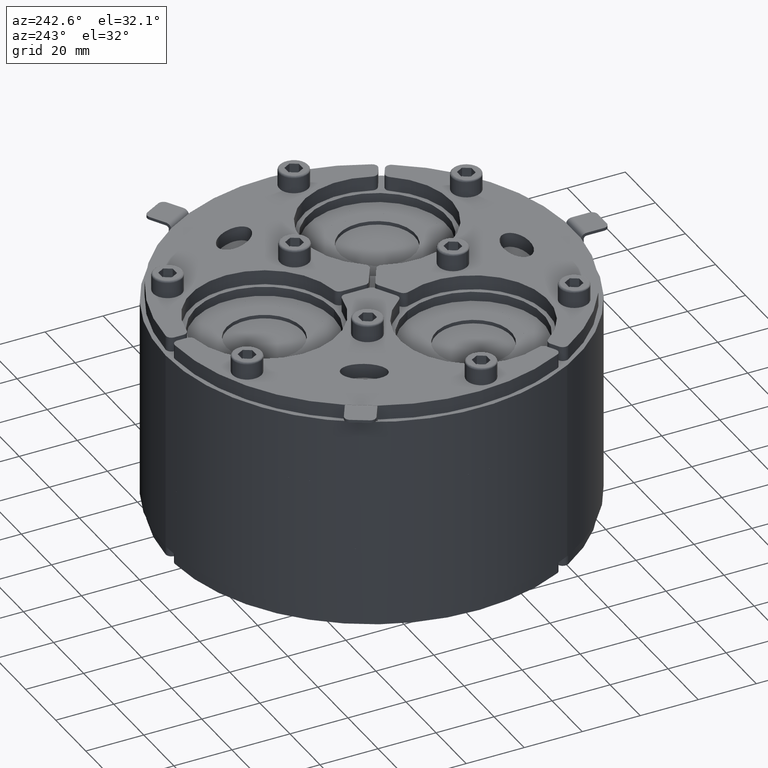
[diagram: clean part render]
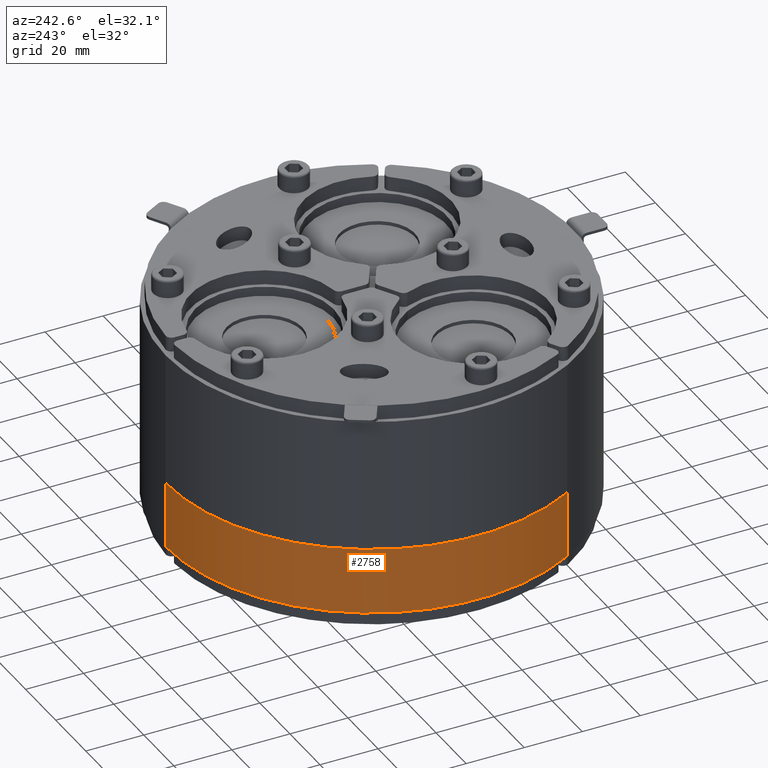
[diagram: same view with one face highlighted and labeled with its STEP entity id]
A machine part, auxiliary view. The second image highlights one B-rep face of the part: STEP entity #2758.
In plain terms, the highlighted cylindrical surface (partial cylindrical patch) has radius 71 mm, axis along (0, 0, -1).
Its self-contained STEP definition (entity closure, byte-faithful):
#438=FACE_OUTER_BOUND('',#617,.T.);
#617=EDGE_LOOP('',(#2319,#2320,#2321,#2322));
#825=LINE('',#4800,#1047);
#826=LINE('',#4806,#1048);
#1047=VECTOR('',#3904,10.);
#1048=VECTOR('',#3911,10.);
#1224=CIRCLE('',#3242,71.);
#1225=CIRCLE('',#3243,71.);
#1416=VERTEX_POINT('',#4796);
#1417=VERTEX_POINT('',#4798);
#1418=VERTEX_POINT('',#4802);
#1419=VERTEX_POINT('',#4804);
#1736=EDGE_CURVE('',#1416,#1417,#825,.T.);
#1737=EDGE_CURVE('',#1416,#1418,#1224,.T.);
#1738=EDGE_CURVE('',#1419,#1417,#1225,.T.);
#1739=EDGE_CURVE('',#1418,#1419,#826,.T.);
#2319=ORIENTED_EDGE('',*,*,#1737,.F.);
#2320=ORIENTED_EDGE('',*,*,#1736,.T.);
#2321=ORIENTED_EDGE('',*,*,#1738,.F.);
#2322=ORIENTED_EDGE('',*,*,#1739,.F.);
#2641=CYLINDRICAL_SURFACE('',#3241,71.);
#2758=ADVANCED_FACE('',(#438),#2641,.T.);
#3241=AXIS2_PLACEMENT_3D('',#4801,#3905,#3906);
#3242=AXIS2_PLACEMENT_3D('',#4803,#3907,#3908);
#3243=AXIS2_PLACEMENT_3D('',#4805,#3909,#3910);
#3904=DIRECTION('',(0.,0.,-1.));
#3905=DIRECTION('center_axis',(0.,0.,-1.));
#3906=DIRECTION('ref_axis',(-0.866025403784439,0.5,0.));
#3907=DIRECTION('center_axis',(0.,0.,1.));
#3908=DIRECTION('ref_axis',(1.,0.,0.));
#3909=DIRECTION('center_axis',(0.,0.,-1.));
#3910=DIRECTION('ref_axis',(1.,0.,0.));
#3911=DIRECTION('',(0.,0.,-1.));
#4796=CARTESIAN_POINT('',(2.87548404282587E-15,71.,0.));
#4798=CARTESIAN_POINT('',(2.22044604925031E-15,71.,-23.));
#4800=CARTESIAN_POINT('',(2.87548404282587E-15,71.,0.));
#4801=CARTESIAN_POINT('Origin',(0.,0.,0.));
#4802=CARTESIAN_POINT('',(-61.4878036686952,-35.5,0.));
#4803=CARTESIAN_POINT('Origin',(0.,0.,0.));
#4804=CARTESIAN_POINT('',(-61.4878036686952,-35.5,-23.));
#4805=CARTESIAN_POINT('Origin',(0.,0.,-23.));
#4806=CARTESIAN_POINT('',(-61.4878036686952,-35.5,0.));